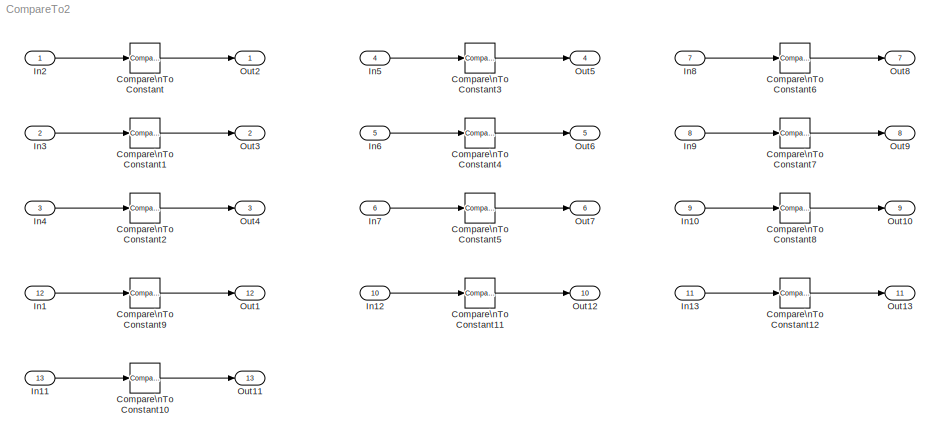
MODEL CompareTo2
KIND model
BLOCK [Reference] Compare\nTo Constant  REF=simulink/Logic and Bit\nOperations/Compare\nTo Constant
  OutDataTypeStr = boolean
  Ports = [1, 1]
  SID = 2
  SourceBlock = simulink/Logic and Bit\nOperations/Compare\nTo Constant
  SourceProductBaseCode = SL
  SourceProductName = Simulink
  SourceType = Compare To Constant
  ZeroCross = on
  const = 3.0
  relop = ==
BLOCK [Reference] Compare\nTo Constant1  REF=simulink/Logic and Bit\nOperations/Compare\nTo Constant
  OutDataTypeStr = boolean
  Ports = [1, 1]
  SID = 31
  SourceBlock = simulink/Logic and Bit\nOperations/Compare\nTo Constant
  SourceProductBaseCode = SL
  SourceProductName = Simulink
  SourceType = Compare To Constant
  ZeroCross = on
  const = 3.0
  relop = ~=
BLOCK [Reference] Compare\nTo Constant10  REF=simulink/Logic and Bit\nOperations/Compare\nTo Constant
  OutDataTypeStr = boolean
  Ports = [1, 1]
  SID = 55
  SourceBlock = simulink/Logic and Bit\nOperations/Compare\nTo Constant
  SourceProductBaseCode = SL
  SourceProductName = Simulink
  SourceType = Compare To Constant
  ZeroCross = on
  const = [2 4 6; 2 4 6]
  relop = >=
BLOCK [Reference] Compare\nTo Constant11  REF=simulink/Logic and Bit\nOperations/Compare\nTo Constant
  OutDataTypeStr = boolean
  Ports = [1, 1]
  SID = 46
  SourceBlock = simulink/Logic and Bit\nOperations/Compare\nTo Constant
  SourceProductBaseCode = SL
  SourceProductName = Simulink
  SourceType = Compare To Constant
  ZeroCross = on
  const = [2 4 6]
  relop = <
BLOCK [Reference] Compare\nTo Constant12  REF=simulink/Logic and Bit\nOperations/Compare\nTo Constant
  OutDataTypeStr = boolean
  Ports = [1, 1]
  SID = 49
  SourceBlock = simulink/Logic and Bit\nOperations/Compare\nTo Constant
  SourceProductBaseCode = SL
  SourceProductName = Simulink
  SourceType = Compare To Constant
  ZeroCross = on
  const = [2 4 6; 4 6 8]
  relop = <=
BLOCK [Reference] Compare\nTo Constant2  REF=simulink/Logic and Bit\nOperations/Compare\nTo Constant
  OutDataTypeStr = boolean
  Ports = [1, 1]
  SID = 32
  SourceBlock = simulink/Logic and Bit\nOperations/Compare\nTo Constant
  SourceProductBaseCode = SL
  SourceProductName = Simulink
  SourceType = Compare To Constant
  ZeroCross = on
  const = 3.0
  relop = <
BLOCK [Reference] Compare\nTo Constant3  REF=simulink/Logic and Bit\nOperations/Compare\nTo Constant
  OutDataTypeStr = boolean
  Ports = [1, 1]
  SID = 33
  SourceBlock = simulink/Logic and Bit\nOperations/Compare\nTo Constant
  SourceProductBaseCode = SL
  SourceProductName = Simulink
  SourceType = Compare To Constant
  ZeroCross = on
  const = 3.0
  relop = >
BLOCK [Reference] Compare\nTo Constant4  REF=simulink/Logic and Bit\nOperations/Compare\nTo Constant
  OutDataTypeStr = boolean
  Ports = [1, 1]
  SID = 34
  SourceBlock = simulink/Logic and Bit\nOperations/Compare\nTo Constant
  SourceProductBaseCode = SL
  SourceProductName = Simulink
  SourceType = Compare To Constant
  ZeroCross = on
  const = 3.0
  relop = ==
BLOCK [Reference] Compare\nTo Constant5  REF=simulink/Logic and Bit\nOperations/Compare\nTo Constant
  OutDataTypeStr = boolean
  Ports = [1, 1]
  SID = 35
  SourceBlock = simulink/Logic and Bit\nOperations/Compare\nTo Constant
  SourceProductBaseCode = SL
  SourceProductName = Simulink
  SourceType = Compare To Constant
  ZeroCross = on
  const = 3.0
  relop = ~=
BLOCK [Reference] Compare\nTo Constant6  REF=simulink/Logic and Bit\nOperations/Compare\nTo Constant
  OutDataTypeStr = boolean
  Ports = [1, 1]
  SID = 36
  SourceBlock = simulink/Logic and Bit\nOperations/Compare\nTo Constant
  SourceProductBaseCode = SL
  SourceProductName = Simulink
  SourceType = Compare To Constant
  ZeroCross = on
  const = 3.0
  relop = <=
BLOCK [Reference] Compare\nTo Constant7  REF=simulink/Logic and Bit\nOperations/Compare\nTo Constant
  OutDataTypeStr = boolean
  Ports = [1, 1]
  SID = 37
  SourceBlock = simulink/Logic and Bit\nOperations/Compare\nTo Constant
  SourceProductBaseCode = SL
  SourceProductName = Simulink
  SourceType = Compare To Constant
  ZeroCross = on
  const = 3.0
  relop = >=
BLOCK [Reference] Compare\nTo Constant8  REF=simulink/Logic and Bit\nOperations/Compare\nTo Constant
  OutDataTypeStr = boolean
  Ports = [1, 1]
  SID = 38
  SourceBlock = simulink/Logic and Bit\nOperations/Compare\nTo Constant
  SourceProductBaseCode = SL
  SourceProductName = Simulink
  SourceType = Compare To Constant
  ZeroCross = on
  const = 3.0
  relop = >
BLOCK [Reference] Compare\nTo Constant9  REF=simulink/Logic and Bit\nOperations/Compare\nTo Constant
  OutDataTypeStr = boolean
  Ports = [1, 1]
  SID = 52
  SourceBlock = simulink/Logic and Bit\nOperations/Compare\nTo Constant
  SourceProductBaseCode = SL
  SourceProductName = Simulink
  SourceType = Compare To Constant
  ZeroCross = on
  const = [2 4 6]
  relop = <=
BLOCK [Inport] In1
  IconDisplay = Port number
  OutDataTypeStr = double
  Port = 12
  SID = 51
BLOCK [Inport] In10
  IconDisplay = Port number
  OutDataTypeStr = boolean
  Port = 9
  PortDimensions = [2 3]
  SID = 12
BLOCK [Inport] In11
  IconDisplay = Port number
  OutDataTypeStr = double
  Port = 13
  SID = 54
BLOCK [Inport] In12
  IconDisplay = Port number
  OutDataTypeStr = double
  Port = 10
  PortDimensions = 3
  SID = 45
BLOCK [Inport] In13
  IconDisplay = Port number
  OutDataTypeStr = double
  Port = 11
  PortDimensions = [2 3]
  SID = 48
BLOCK [Inport] In2
  IconDisplay = Port number
  OutDataTypeStr = double
  SID = 4
BLOCK [Inport] In3
  IconDisplay = Port number
  OutDataTypeStr = int8
  Port = 2
  SID = 5
BLOCK [Inport] In4
  IconDisplay = Port number
  OutDataTypeStr = boolean
  Port = 3
  SID = 6
BLOCK [Inport] In5
  IconDisplay = Port number
  OutDataTypeStr = double
  Port = 4
  PortDimensions = 3
  SID = 7
BLOCK [Inport] In6
  IconDisplay = Port number
  OutDataTypeStr = int8
  Port = 5
  PortDimensions = 3
  SID = 8
BLOCK [Inport] In7
  IconDisplay = Port number
  OutDataTypeStr = boolean
  Port = 6
  PortDimensions = 3
  SID = 9
BLOCK [Inport] In8
  IconDisplay = Port number
  OutDataTypeStr = double
  Port = 7
  PortDimensions = [2 3]
  SID = 10
BLOCK [Inport] In9
  IconDisplay = Port number
  OutDataTypeStr = int8
  Port = 8
  PortDimensions = [2 3]
  SID = 11
BLOCK [Outport] Out1
  IconDisplay = Port number
  Port = 12
  SID = 53
BLOCK [Outport] Out10
  IconDisplay = Port number
  Port = 9
  SID = 30
BLOCK [Outport] Out11
  IconDisplay = Port number
  Port = 13
  SID = 56
BLOCK [Outport] Out12
  IconDisplay = Port number
  Port = 10
  SID = 47
BLOCK [Outport] Out13
  IconDisplay = Port number
  Port = 11
  SID = 50
BLOCK [Outport] Out2
  IconDisplay = Port number
  SID = 22
BLOCK [Outport] Out3
  IconDisplay = Port number
  Port = 2
  SID = 23
BLOCK [Outport] Out4
  IconDisplay = Port number
  Port = 3
  SID = 24
BLOCK [Outport] Out5
  IconDisplay = Port number
  Port = 4
  SID = 25
BLOCK [Outport] Out6
  IconDisplay = Port number
  Port = 5
  SID = 26
BLOCK [Outport] Out7
  IconDisplay = Port number
  Port = 6
  SID = 27
BLOCK [Outport] Out8
  IconDisplay = Port number
  Port = 7
  SID = 28
BLOCK [Outport] Out9
  IconDisplay = Port number
  Port = 8
  SID = 29
LINE Compare\nTo Constant10:1 -> Out11:1
LINE Compare\nTo Constant11:1 -> Out12:1
LINE Compare\nTo Constant12:1 -> Out13:1
LINE Compare\nTo Constant1:1 -> Out3:1
LINE Compare\nTo Constant2:1 -> Out4:1
LINE Compare\nTo Constant3:1 -> Out5:1
LINE Compare\nTo Constant4:1 -> Out6:1
LINE Compare\nTo Constant5:1 -> Out7:1
LINE Compare\nTo Constant6:1 -> Out8:1
LINE Compare\nTo Constant7:1 -> Out9:1
LINE Compare\nTo Constant8:1 -> Out10:1
LINE Compare\nTo Constant9:1 -> Out1:1
LINE Compare\nTo Constant:1 -> Out2:1
LINE In10:1 -> Compare\nTo Constant8:1
LINE In11:1 -> Compare\nTo Constant10:1
LINE In12:1 -> Compare\nTo Constant11:1
LINE In13:1 -> Compare\nTo Constant12:1
LINE In1:1 -> Compare\nTo Constant9:1
LINE In2:1 -> Compare\nTo Constant:1
LINE In3:1 -> Compare\nTo Constant1:1
LINE In4:1 -> Compare\nTo Constant2:1
LINE In5:1 -> Compare\nTo Constant3:1
LINE In6:1 -> Compare\nTo Constant4:1
LINE In7:1 -> Compare\nTo Constant5:1
LINE In8:1 -> Compare\nTo Constant6:1
LINE In9:1 -> Compare\nTo Constant7:1
